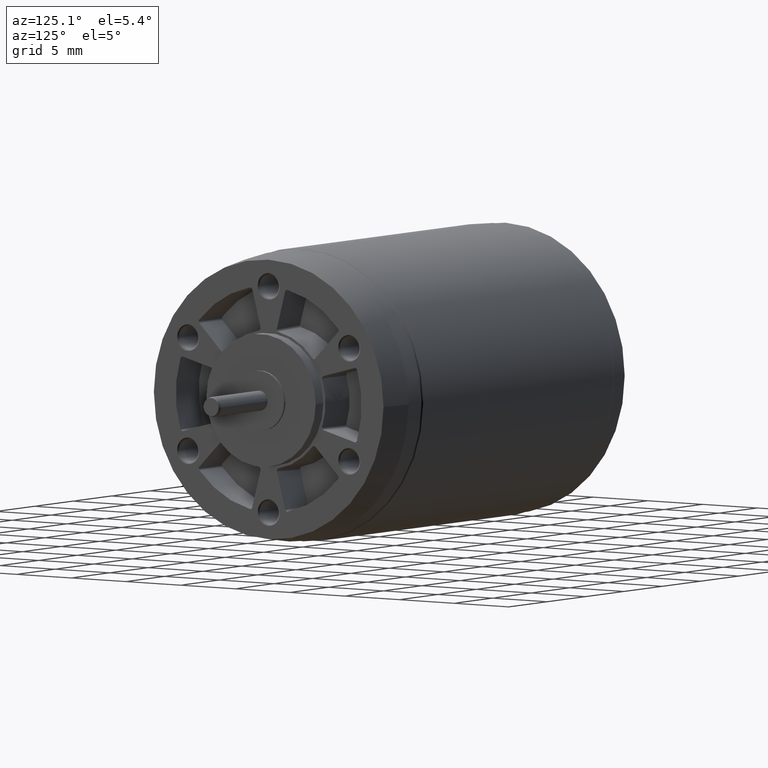
[diagram: clean part render]
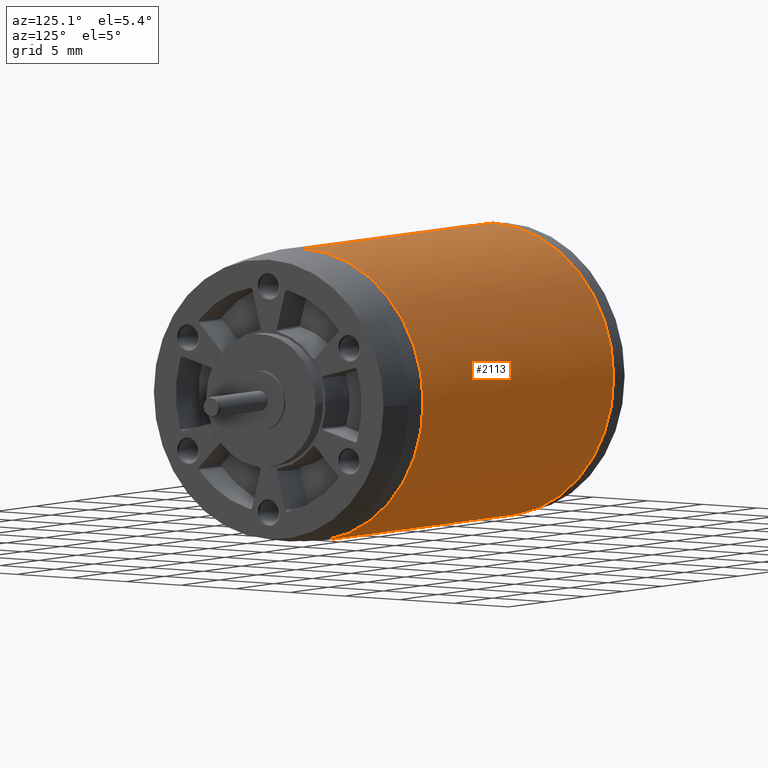
[diagram: same view with one face highlighted and labeled with its STEP entity id]
A machine part, auxiliary view. The second image highlights one B-rep face of the part: STEP entity #2113.
In plain terms, the highlighted cylindrical surface (partial cylindrical patch) has radius 11 mm, axis along (-1, 0, 0).
Its self-contained STEP definition (entity closure, byte-faithful):
#330=CARTESIAN_POINT('',(1.033265846584E2,2.428669869102E0,-3.989812658115E0));
#331=DIRECTION('',(-1.E0,0.E0,0.E0));
#332=DIRECTION('',(0.E0,0.E0,1.E0));
#333=AXIS2_PLACEMENT_3D('',#330,#331,#332);
#358=DIRECTION('',(-1.E0,-2.275146833917E-11,-1.410735579070E-8));
#359=VECTOR('',#358,2.478679620122E1);
#360=CARTESIAN_POINT('',(1.033265840756E2,2.428669869102E0,7.010187691561E0));
#361=LINE('',#360,#359);
#362=CARTESIAN_POINT('',(7.853978787436E1,2.428669869102E0,-3.989812658115E0));
#363=DIRECTION('',(-1.E0,0.E0,0.E0));
#364=DIRECTION('',(0.E0,0.E0,1.E0));
#365=AXIS2_PLACEMENT_3D('',#362,#363,#364);
#367=DIRECTION('',(1.E0,-8.346670373041E-11,-7.053814671524E-9));
#368=VECTOR('',#367,2.478679631775E1);
#369=CARTESIAN_POINT('',(7.853978787436E1,2.428669867128E0,-1.498981265812E1));
#370=LINE('',#369,#368);
#1433=CARTESIAN_POINT('',(7.853978787436E1,2.428669869102E0,7.010187341885E0));
#1434=CARTESIAN_POINT('',(7.853978787436E1,2.428669864590E0,-1.498981265811E1));
#1435=VERTEX_POINT('',#1433);
#1436=VERTEX_POINT('',#1434);
#1437=CARTESIAN_POINT('',(1.033265841921E2,2.428669865059E0,-1.498981283296E1));
#1438=VERTEX_POINT('',#1437);
#1439=CARTESIAN_POINT('',(1.033265840756E2,2.428669869102E0,7.010187691561E0));
#1440=VERTEX_POINT('',#1439);
#2101=CARTESIAN_POINT('',(1.038223186917E2,2.428669869102E0,-3.989812658115E0));
#2102=DIRECTION('',(-1.E0,0.E0,0.E0));
#2103=DIRECTION('',(0.E0,0.E0,1.E0));
#2104=AXIS2_PLACEMENT_3D('',#2101,#2102,#2103);
#2105=CYLINDRICAL_SURFACE('',#2104,1.1E1);
#2106=ORIENTED_EDGE('',*,*,#2066,.F.);
#2107=ORIENTED_EDGE('',*,*,#2095,.T.);
#2109=ORIENTED_EDGE('',*,*,#2108,.T.);
#2110=ORIENTED_EDGE('',*,*,#2091,.T.);
#2111=EDGE_LOOP('',(#2106,#2107,#2109,#2110));
#2112=FACE_OUTER_BOUND('',#2111,.F.);
#2113=ADVANCED_FACE('',(#2112),#2105,.T.);
#334=CIRCLE('',#333,1.099999999998E1);
#366=CIRCLE('',#365,1.1E1);
#2066=EDGE_CURVE('',#1440,#1438,#334,.T.);
#2091=EDGE_CURVE('',#1436,#1438,#370,.T.);
#2095=EDGE_CURVE('',#1440,#1435,#361,.T.);
#2108=EDGE_CURVE('',#1435,#1436,#366,.T.);